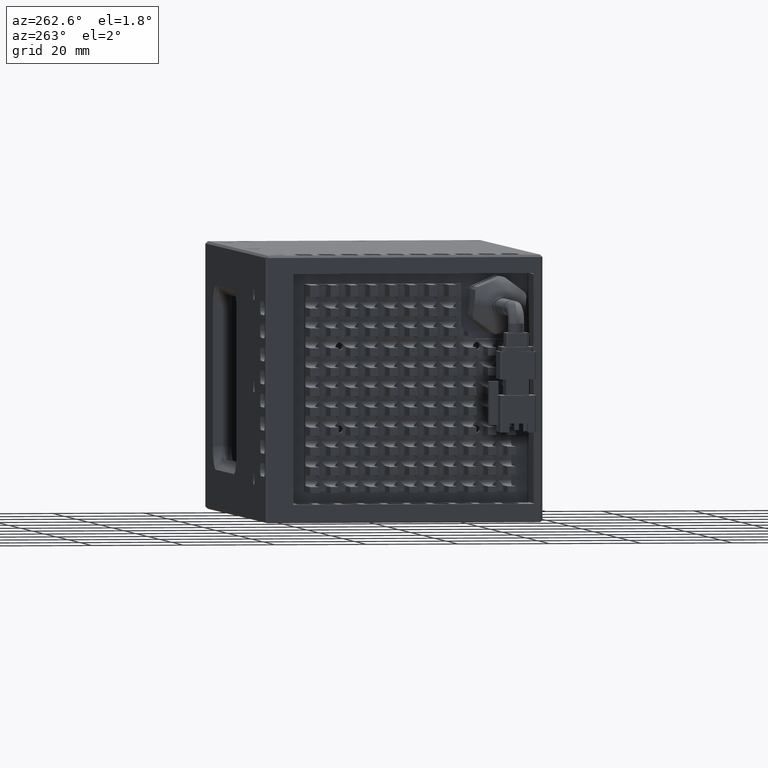
[diagram: clean part render]
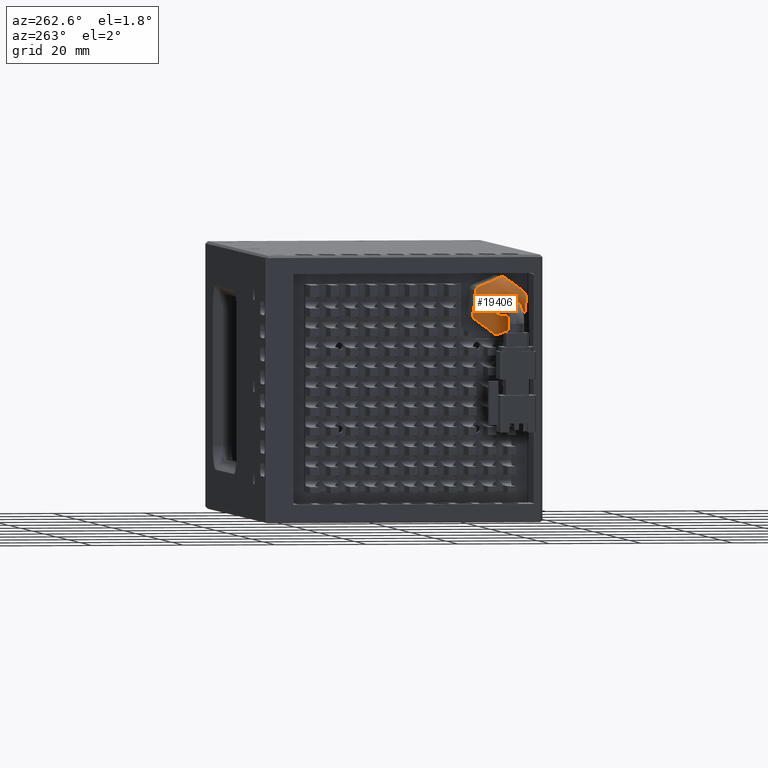
[diagram: same view with one face highlighted and labeled with its STEP entity id]
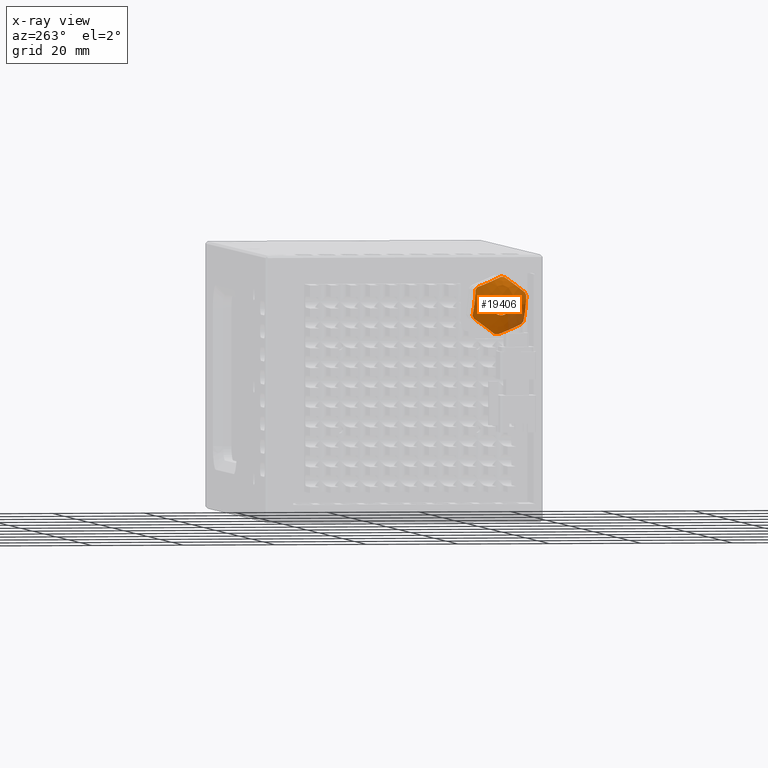
[diagram: x-ray of the same camera — body ghosted, the highlighted face saturated]
A machine part, auxiliary view. The second image highlights one B-rep face of the part: STEP entity #19406.
The next image is the same camera in x-ray: the body ghosted, the highlighted face saturated — about 18% of this face is hidden behind the body in this view.
In plain terms, the highlighted face is a freeform B-spline surface patch.
Its self-contained STEP definition (entity closure, byte-faithful):
#63 = CARTESIAN_POINT ( 'NONE',  ( -68.86375292816285300, -3.792667049684699700, 49.83769652459977800 ) ) ;
#166 = DIRECTION ( 'NONE',  ( 0.0000000000000000000, -0.1155358669953258200, 0.9933033088828601100 ) ) ;
#1013 = CARTESIAN_POINT ( 'NONE',  ( -69.38120834824214000, -3.117553787398188000, 50.33971150953847500 ) ) ;
#1240 = CARTESIAN_POINT ( 'NONE',  ( -68.86375292816285300, 0.6615168280449691400, 53.14983269078837200 ) ) ;
#1282 = CARTESIAN_POINT ( 'NONE',  ( -67.11748828113964300, -2.040397117867909200, 52.89484992564335600 ) ) ;
#1352 = AXIS2_PLACEMENT_3D ( 'NONE', #9060, #46141, #14370 ) ;
#1388 = CIRCLE ( 'NONE', #61117, 6.249999999999519500 ) ;
#1791 = EDGE_CURVE ( 'NONE', #23437, #22887, #40915, .T. ) ;
#2209 = ORIENTED_EDGE ( 'NONE', *, *, #60921, .F. ) ;
#2486 = DIRECTION ( 'NONE',  ( 1.000000000000000000, 3.435095995686201000E-016, -5.943609381515295800E-025 ) ) ;
#2876 = CARTESIAN_POINT ( 'NONE',  ( -69.36540694991369100, 7.560464355518643500, 45.73862366140457400 ) ) ;
#3120 = EDGE_LOOP ( 'NONE', ( #13408, #25479, #13553, #9849, #22340, #30602, #57524, #2209, #23750, #50856, #17514, #3140, #38096 ) ) ;
#3140 = ORIENTED_EDGE ( 'NONE', *, *, #8042, .F. ) ;
#3761 = CARTESIAN_POINT ( 'NONE',  ( -68.86375292816285300, 1.775993330902647400, 47.00000000000953500 ) ) ;
#4474 = CARTESIAN_POINT ( 'NONE',  ( -69.36540694991344900, -4.008477693713319700, 48.26137633861409200 ) ) ;
#4615 = CARTESIAN_POINT ( 'NONE',  ( -69.15758857129343100, 1.819326933526871400, 53.08153772507832700 ) ) ;
#5013 = VERTEX_POINT ( 'NONE', #24273 ) ;
#5042 = CARTESIAN_POINT ( 'NONE',  ( -69.76791800731977800, -0.6688521879133749700, 41.95597120429006600 ) ) ;
#5071 = CARTESIAN_POINT ( 'NONE',  ( -69.74827311948452300, 4.449950362044707400, 51.94504730067372800 ) ) ;
#5281 = CARTESIAN_POINT ( 'NONE',  ( -69.76791800731975000, 4.921827646007848500, 42.36068727452639800 ) ) ;
#6366 = CARTESIAN_POINT ( 'NONE',  ( -69.67060427605079600, -2.354425536202253700, 50.90717453971647200 ) ) ;
#6644 = CARTESIAN_POINT ( 'NONE',  ( -76.08316824912783700, 4.992152780540819500, 50.51262484915948600 ) ) ;
#7600 = CARTESIAN_POINT ( 'NONE',  ( -68.86375292816285300, 1.775993330902647400, 47.00000000000953500 ) ) ;
#7998 = CARTESIAN_POINT ( 'NONE',  ( -68.86375292816285300, 1.775993330902647400, 47.00000000000953500 ) ) ;
#8042 = EDGE_CURVE ( 'NONE', #45745, #43527, #1388, .T. ) ;
#8171 = AXIS2_PLACEMENT_3D ( 'NONE', #63686, #31951, #166 ) ;
#8188 = AXIS2_PLACEMENT_3D ( 'NONE', #34255, #2486, #39546 ) ;
#8218 = CARTESIAN_POINT ( 'NONE',  ( -69.01067074972847600, 7.635850173332784200, 45.09050473327419400 ) ) ;
#8396 = AXIS2_PLACEMENT_3D ( 'NONE', #7600, #44694, #12902 ) ;
#9060 = CARTESIAN_POINT ( 'NONE',  ( -68.86375292816285300, 1.775993330902647400, 47.00000000000953500 ) ) ;
#9117 = DIRECTION ( 'NONE',  ( 0.0000000000000000000, 0.1155358669953259300, -0.9933033088828600000 ) ) ;
#9807 = CARTESIAN_POINT ( 'NONE',  ( -69.01067074972826300, -4.083863511527429300, 48.90949526674420900 ) ) ;
#9849 = ORIENTED_EDGE ( 'NONE', *, *, #48258, .F. ) ;
#10173 = CARTESIAN_POINT ( 'NONE',  ( -69.38120834824199800, 2.221494780315773600, 52.90779187383861200 ) ) ;
#10369 = CARTESIAN_POINT ( 'NONE',  ( -69.67125075074393700, -1.344631551777275300, 42.24792358626742600 ) ) ;
#10404 = CARTESIAN_POINT ( 'NONE',  ( -69.61395248318250100, 5.116209980309052200, 51.65720766991690000 ) ) ;
#10559 = VERTEX_POINT ( 'NONE', #44816 ) ;
#10620 = CARTESIAN_POINT ( 'NONE',  ( -69.67125075074403600, 4.331099784588070100, 41.92142136905575700 ) ) ;
#10706 = EDGE_LOOP ( 'NONE', ( #65352, #31477 ) ) ;
#11080 = CARTESIAN_POINT ( 'NONE',  ( -68.86375292816285300, 2.498092499623379800, 40.79185431949214500 ) ) ;
#11395 = EDGE_CURVE ( 'NONE', #10559, #5013, #32630, .T. ) ;
#11665 = CARTESIAN_POINT ( 'NONE',  ( -69.76751117526085000, -1.767517929904791800, 51.34359969915998100 ) ) ;
#11723 = AXIS2_PLACEMENT_3D ( 'NONE', #22608, #59703, #27889 ) ;
#11933 = CARTESIAN_POINT ( 'NONE',  ( -70.08185129819501900, -6.113500693981673200, 49.22087308385862800 ) ) ;
#12902 = DIRECTION ( 'NONE',  ( 0.0000000000000000000, 0.1155358669953259300, -0.9933033088828600000 ) ) ;
#13318 = CARTESIAN_POINT ( 'NONE',  ( -69.61245713189376300, 7.196944862330591200, 48.86393119418734400 ) ) ;
#13329 = DIRECTION ( 'NONE',  ( 0.0000000000000000000, 0.1155358669953259300, -0.9933033088828600000 ) ) ;
#13408 = ORIENTED_EDGE ( 'NONE', *, *, #67504, .F. ) ;
#13553 = ORIENTED_EDGE ( 'NONE', *, *, #42558, .F. ) ;
#14370 = DIRECTION ( 'NONE',  ( 0.0000000000000000000, 0.1155358669953259300, -0.9933033088828600000 ) ) ;
#14902 = CARTESIAN_POINT ( 'NONE',  ( -69.61245713189386200, -3.644958200525246100, 45.13606880583137800 ) ) ;
#15705 = CARTESIAN_POINT ( 'NONE',  ( -69.46139549951442400, -1.995845591150274600, 42.52926317746930400 ) ) ;
#15736 = CARTESIAN_POINT ( 'NONE',  ( -69.36540694991353500, 5.760612796175310600, 51.37881068547886800 ) ) ;
#15953 = CARTESIAN_POINT ( 'NONE',  ( -69.46139549951458000, 3.761845531830432200, 41.49812326325859900 ) ) ;
#16519 = CARTESIAN_POINT ( 'NONE',  ( -68.86375292816285300, 2.102806242668322900, 40.75855038307755500 ) ) ;
#16802 = CARTESIAN_POINT ( 'NONE',  ( -68.86375292816285300, -3.792667049684699700, 49.83769652459977800 ) ) ;
#17040 = CARTESIAN_POINT ( 'NONE',  ( -69.74827311948448000, -1.169564738817325400, 51.78823836793858200 ) ) ;
#17312 = CARTESIAN_POINT ( 'NONE',  ( -76.08316824912810700, 5.712523559291454100, 44.31933875745265500 ) ) ;
#17514 = ORIENTED_EDGE ( 'NONE', *, *, #24078, .T. ) ;
#18152 = CARTESIAN_POINT ( 'NONE',  ( -68.86375292816285300, 7.659142921570422800, 44.89024861801639300 ) ) ;
#18557 = B_SPLINE_CURVE_WITH_KNOTS ( 'NONE', 3,
 ( #20779, #57860, #26060, #63209, #31456, #68479, #36777, #5042, #42142, #10369, #47402, #15705, #52728, #20998, #58095, #26291 ),
 .UNSPECIFIED., .F., .F.,
 ( 4, 2, 2, 2, 2, 2, 2, 4 ),
 ( 4.690887623826672200E-016, 0.001475511169496401600, 0.002213266754244368100, 0.002951022338992334400, 0.003688777923740300700, 0.004426533508488267000, 0.005164289093236232800, 0.005902044677984199600 ),
 .UNSPECIFIED. ) ;
#18626 = CARTESIAN_POINT ( 'NONE',  ( -69.74788720313210900, 7.281067362270874800, 48.14069987463955900 ) ) ;
#18782 = B_SPLINE_CURVE_WITH_KNOTS ( 'NONE', 3,
 ( #52744, #52523, #26307, #63440, #31691, #68727, #37024, #5281, #42401, #10620, #47662, #15953, #52979, #21232, #58341, #26534 ),
 .UNSPECIFIED., .F., .F.,
 ( 4, 2, 2, 2, 2, 2, 2, 4 ),
 ( 3.506984956607857700E-016, 0.001475511169496294900, 0.002213266754244266200, 0.002951022338992237300, 0.003688777923740208700, 0.004426533508488178500, 0.005164289093236150400, 0.005902044677984120600 ),
 .UNSPECIFIED. ) ;
#19406 = ADVANCED_FACE ( 'NONE', ( #66655, #26019 ), #42108, .T. ) ;
#20210 = CARTESIAN_POINT ( 'NONE',  ( -69.74788720313216600, -3.729080700465533300, 45.85930012537919300 ) ) ;
#20779 = CARTESIAN_POINT ( 'NONE',  ( -68.86375292816285300, 2.102806242668322900, 40.75855038307755500 ) ) ;
#20998 = CARTESIAN_POINT ( 'NONE',  ( -69.14023917023453700, -2.613706873808888000, 42.79619360306332300 ) ) ;
#21030 = CARTESIAN_POINT ( 'NONE',  ( -69.01067074972824900, 6.359593161516713200, 51.12003725472583000 ) ) ;
#21147 = EDGE_CURVE ( 'NONE', #47506, #5013, #18557, .T. ) ;
#21232 = CARTESIAN_POINT ( 'NONE',  ( -69.14023917023473600, 3.221746360893675800, 41.09650490925837100 ) ) ;
#21725 = DIRECTION ( 'NONE',  ( 1.000000000000000000, 3.435095995686201000E-016, -5.943609381515295800E-025 ) ) ;
#22329 = CARTESIAN_POINT ( 'NONE',  ( -69.61395248318247300, -0.5871584972338312900, 52.22131630749275600 ) ) ;
#22340 = ORIENTED_EDGE ( 'NONE', *, *, #21147, .T. ) ;
#22594 = CARTESIAN_POINT ( 'NONE',  ( -70.08185129819513300, -5.393129915231303300, 43.02758699215177500 ) ) ;
#22608 = CARTESIAN_POINT ( 'NONE',  ( -68.86375292816285300, 1.775993330902647400, 47.00000000000953500 ) ) ;
#22887 = VERTEX_POINT ( 'NONE', #60649 ) ;
#23437 = VERTEX_POINT ( 'NONE', #56130 ) ;
#23750 = ORIENTED_EDGE ( 'NONE', *, *, #51095, .T. ) ;
#23936 = CARTESIAN_POINT ( 'NONE',  ( -69.76791800731984900, 7.366673164823561500, 47.40471607024569100 ) ) ;
#24078 = EDGE_CURVE ( 'NONE', #50008, #43527, #66457, .T. ) ;
#24131 = VERTEX_POINT ( 'NONE', #11080 ) ;
#24273 = CARTESIAN_POINT ( 'NONE',  ( -68.86375292816285300, -2.992679756905907600, 42.95991869122291700 ) ) ;
#24797 = CARTESIAN_POINT ( 'NONE',  ( -68.86375292816285300, 1.775993330902647400, 47.00000000000953500 ) ) ;
#25371 = CARTESIAN_POINT ( 'NONE',  ( -68.86375292816285300, -4.107156259765115900, 49.10975138200239300 ) ) ;
#25479 = ORIENTED_EDGE ( 'NONE', *, *, #54796, .T. ) ;
#25488 = CARTESIAN_POINT ( 'NONE',  ( -69.76791800731982100, -3.814686503018229800, 46.59528392977304600 ) ) ;
#25873 = CIRCLE ( 'NONE', #8188, 6.249999999999516800 ) ;
#26019 = FACE_OUTER_BOUND ( 'NONE', #3120, .T. ) ;
#26060 = CARTESIAN_POINT ( 'NONE',  ( -69.38120834824229600, 1.330491881488283800, 41.09220812617983400 ) ) ;
#26096 = CARTESIAN_POINT ( 'NONE',  ( -69.61245713189376300, 2.872257331551832500, 52.62664733599891800 ) ) ;
#26291 = CARTESIAN_POINT ( 'NONE',  ( -68.86375292816285300, -2.992679756905907600, 42.95991869122291700 ) ) ;
#26307 = CARTESIAN_POINT ( 'NONE',  ( -69.38120834824218300, 6.669540449203119600, 43.66028849047898300 ) ) ;
#26534 = CARTESIAN_POINT ( 'NONE',  ( -68.86375292816285300, 2.890469833762177000, 40.85016730923076300 ) ) ;
#27606 = CARTESIAN_POINT ( 'NONE',  ( -69.36540694991340700, -0.02385822844040110000, 52.64018702408416300 ) ) ;
#27790 = EDGE_CURVE ( 'NONE', #22887, #23437, #54350, .T. ) ;
#27882 = CARTESIAN_POINT ( 'NONE',  ( -69.57956255432741000, 3.970657990856444600, 40.91651937782536000 ) ) ;
#27889 = DIRECTION ( 'NONE',  ( 0.0000000000000000000, 0.1155358669953259300, -0.9933033088828600000 ) ) ;
#28710 = EDGE_CURVE ( 'NONE', #10559, #50489, #40329, .T. ) ;
#29047 = CARTESIAN_POINT ( 'NONE',  ( -69.38120834824201200, 7.115041898616981400, 49.56808036430897600 ) ) ;
#29269 = CARTESIAN_POINT ( 'NONE',  ( -69.67125075074412200, 7.451724667267646000, 46.67349778279739100 ) ) ;
#29957 = CARTESIAN_POINT ( 'NONE',  ( -68.86375292816285300, 7.344653711489161000, 44.16230347541733900 ) ) ;
#30152 = DIRECTION ( 'NONE',  ( 0.0000000000000000000, 0.1155358669953666000, -0.9933033088828552300 ) ) ;
#30602 = ORIENTED_EDGE ( 'NONE', *, *, #11395, .F. ) ;
#30873 = CARTESIAN_POINT ( 'NONE',  ( -69.67125075074402200, -3.899738005462314700, 47.32650221722131100 ) ) ;
#31456 = CARTESIAN_POINT ( 'NONE',  ( -69.67060427605066800, 0.4574903560481536900, 41.46936506297194600 ) ) ;
#31477 = ORIENTED_EDGE ( 'NONE', *, *, #1791, .T. ) ;
#31481 = CARTESIAN_POINT ( 'NONE',  ( -69.74788720313222300, 3.540655277063015300, 52.33788389820305300 ) ) ;
#31691 = CARTESIAN_POINT ( 'NONE',  ( -69.67060427605058200, 5.906412198007584100, 43.09282546030131300 ) ) ;
#31951 = DIRECTION ( 'NONE',  ( 1.000000000000000000, 3.435095995686201000E-016, -5.943609381515295800E-025 ) ) ;
#32630 = CIRCLE ( 'NONE', #52940, 6.249999999999515100 ) ;
#33024 = CARTESIAN_POINT ( 'NONE',  ( -69.01067074972813500, 0.4997363190867983900, 53.02953252146132700 ) ) ;
#33062 = CARTESIAN_POINT ( 'NONE',  ( -69.57956255432689800, -0.4186713290508614100, 53.08348062219300800 ) ) ;
#33291 = CARTESIAN_POINT ( 'NONE',  ( -67.11748828113989900, -0.5854992543141562800, 40.38657089906728700 ) ) ;
#34255 = CARTESIAN_POINT ( 'NONE',  ( -68.86375292816285300, 1.775993330902647400, 47.00000000000953500 ) ) ;
#34355 = B_SPLINE_CURVE_WITH_KNOTS ( 'NONE', 3,
 ( #16802, #48510, #1013, #38121, #6366, #43461, #11665, #48736, #17040, #54023, #22329, #59402, #27606, #64720, #33024, #1240 ),
 .UNSPECIFIED., .F., .F.,
 ( 4, 2, 2, 2, 2, 2, 2, 4 ),
 ( 1.319765775190741900E-016, 0.001475511169496877800, 0.002213266754245249300, 0.002951022338993621600, 0.003688777923741994200, 0.004426533508490366900, 0.005164289093238740400, 0.005902044677987113000 ),
 .UNSPECIFIED. ) ;
#34642 = CARTESIAN_POINT ( 'NONE',  ( -69.46139549951456600, 7.533684453883029900, 45.96886008579814800 ) ) ;
#36059 = EDGE_CURVE ( 'NONE', #45745, #49743, #46154, .T. ) ;
#36213 = CARTESIAN_POINT ( 'NONE',  ( -69.46139549951433900, -3.981697792077699500, 48.03113991422054600 ) ) ;
#36777 = CARTESIAN_POINT ( 'NONE',  ( -69.76751117526065100, -0.2139187220289190400, 41.75942937997803700 ) ) ;
#36813 = CARTESIAN_POINT ( 'NONE',  ( -69.76791800732003400, 4.220838849718489000, 52.04402879572795400 ) ) ;
#36932 = VERTEX_POINT ( 'NONE', #64142 ) ;
#37024 = CARTESIAN_POINT ( 'NONE',  ( -69.76751117526056600, 5.319504591710440900, 42.65640030085803100 ) ) ;
#38096 = ORIENTED_EDGE ( 'NONE', *, *, #36059, .T. ) ;
#38121 = CARTESIAN_POINT ( 'NONE',  ( -69.61245713189387600, -2.548694199875747300, 50.76271614182066800 ) ) ;
#38383 = CARTESIAN_POINT ( 'NONE',  ( -70.08185129819497700, 8.945116577036481300, 50.97241300786692600 ) ) ;
#39126 = CARTESIAN_POINT ( 'NONE',  ( -68.86375292816285300, 2.890469833762177000, 40.85016730923076300 ) ) ;
#39546 = DIRECTION ( 'NONE',  ( 0.0000000000000000000, 0.1155358669952932900, -0.9933033088828637800 ) ) ;
#39929 = CARTESIAN_POINT ( 'NONE',  ( -69.14023917023460800, 7.611446565604945000, 45.30031130620378800 ) ) ;
#40329 = B_SPLINE_CURVE_WITH_KNOTS ( 'NONE', 3,
 ( #62393, #41327, #46654, #14902, #51957, #20210, #57287, #25488, #62627, #30873, #67918, #36213, #4474, #41548, #9807, #46867 ),
 .UNSPECIFIED., .F., .F.,
 ( 4, 2, 2, 2, 2, 2, 2, 4 ),
 ( 3.681255805517746600E-016, 0.001475511169496699300, 0.002213266754244868100, 0.002951022338993037000, 0.003688777923741205800, 0.004426533508489373700, 0.005164289093237543400, 0.005902044677985712200 ),
 .UNSPECIFIED. ) ;
#40772 = VERTEX_POINT ( 'NONE', #39126 ) ;
#40836 = DIRECTION ( 'NONE',  ( 1.000000000000000000, 3.435095995686201000E-016, -5.943609381515295800E-025 ) ) ;
#40915 = CIRCLE ( 'NONE', #8171, 2.000000000000002200 ) ;
#41327 = CARTESIAN_POINT ( 'NONE',  ( -69.15758857129377200, -3.512439634392970200, 43.99675913818516200 ) ) ;
#41548 = CARTESIAN_POINT ( 'NONE',  ( -69.14023917023423800, -4.059459903799619500, 48.69968869381483500 ) ) ;
#42108 =( BOUNDED_SURFACE ( )  B_SPLINE_SURFACE ( 3, 3, ( 
 ( #64289, #64761, #33062, #1282 ),
 ( #38383, #6644, #43730, #11933 ),
 ( #49023, #17312, #54305, #22594 ),
 ( #59689, #27882, #64983, #33291 ) ),
 .UNSPECIFIED., .F., .F., .F. ) 
 B_SPLINE_SURFACE_WITH_KNOTS ( ( 4, 4 ),
 ( 4, 4 ),
 ( 0.0000000000000000000, 1.000000000000000000 ),
 ( 0.0000000000000000000, 1.000000000000000000 ),
 .UNSPECIFIED. ) 
 GEOMETRIC_REPRESENTATION_ITEM ( )  RATIONAL_B_SPLINE_SURFACE ( (
 ( 1.000000000000000000, 0.7017694484579010100, 0.7017694484579010100, 1.000000000000000000),
 ( 0.6732171387617810200, 0.4724432201612612800, 0.4724432201612612800, 0.6732171387617810200),
 ( 0.6732171387617810200, 0.4724432201612612800, 0.4724432201612612800, 0.6732171387617810200),
 ( 1.000000000000000000, 0.7017694484579010100, 0.7017694484579010100, 1.000000000000000000) ) ) 
 REPRESENTATION_ITEM ( '' )  SURFACE ( )  );
#42142 = CARTESIAN_POINT ( 'NONE',  ( -69.74827311948423900, -0.8979637002394858000, 42.05495269934421300 ) ) ;
#42176 = CARTESIAN_POINT ( 'NONE',  ( -69.67125075074416400, 4.896618213582739200, 51.75207641375039500 ) ) ;
#42401 = CARTESIAN_POINT ( 'NONE',  ( -69.74827311948429600, 4.721551400623289900, 42.21176163207969300 ) ) ;
#42558 = EDGE_CURVE ( 'NONE', #24131, #40772, #55745, .T. ) ;
#43461 = CARTESIAN_POINT ( 'NONE',  ( -69.74788720313225100, -1.964418754304794800, 51.19718402357275300 ) ) ;
#43527 = VERTEX_POINT ( 'NONE', #44414 ) ;
#43730 = CARTESIAN_POINT ( 'NONE',  ( -76.08316824912785100, -2.160536897485977100, 49.68066124256606700 ) ) ;
#44414 = CARTESIAN_POINT ( 'NONE',  ( -68.86375292816285300, 6.544666418712424200, 51.04008130879449800 ) ) ;
#44694 = DIRECTION ( 'NONE',  ( -1.000000000000000000, -3.435095995686201000E-016, 5.943609381515295800E-025 ) ) ;
#44816 = CARTESIAN_POINT ( 'NONE',  ( -68.86375292816285300, -3.465854137917597600, 43.59624690766882100 ) ) ;
#45091 = CARTESIAN_POINT ( 'NONE',  ( -68.86375292816285300, 7.017840799722939900, 50.40375309235000900 ) ) ;
#45098 = DIRECTION ( 'NONE',  ( 1.000000000000000000, 3.435095995686201000E-016, -5.943609381515295800E-025 ) ) ;
#45312 = CARTESIAN_POINT ( 'NONE',  ( -68.86375292816285300, 7.659142921570422800, 44.89024861801639300 ) ) ;
#45745 = VERTEX_POINT ( 'NONE', #62568 ) ;
#46141 = DIRECTION ( 'NONE',  ( 1.000000000000000000, 3.435095995686201000E-016, -5.943609381515295800E-025 ) ) ;
#46154 = B_SPLINE_CURVE_WITH_KNOTS ( 'NONE', 3,
 ( #45091, #66091, #29047, #13318, #50355, #18626, #55683, #23936, #61044, #29269, #66324, #34642, #2876, #39929, #8218, #45312 ),
 .UNSPECIFIED., .F., .F.,
 ( 4, 2, 2, 2, 2, 2, 2, 4 ),
 ( 1.497122641742852700E-016, 0.001475511169496494800, 0.002213266754244667300, 0.002951022338992840100, 0.003688777923741012800, 0.004426533508489185500, 0.005164289093237358700, 0.005902044677985531000 ),
 .UNSPECIFIED. ) ;
#46654 = CARTESIAN_POINT ( 'NONE',  ( -69.38120834824232500, -3.563055236811629700, 44.43191963570969700 ) ) ;
#46867 = CARTESIAN_POINT ( 'NONE',  ( -68.86375292816285300, -4.107156259765115900, 49.10975138200239300 ) ) ;
#47402 = CARTESIAN_POINT ( 'NONE',  ( -69.61395248318233100, -1.564223318503453500, 42.34279233010092000 ) ) ;
#47439 = CARTESIAN_POINT ( 'NONE',  ( -69.46139549951450900, 5.547832252956119700, 51.47073682254839600 ) ) ;
#47506 = VERTEX_POINT ( 'NONE', #16519 ) ;
#47662 = CARTESIAN_POINT ( 'NONE',  ( -69.61395248318244500, 4.139145159040094900, 41.77868369252573200 ) ) ;
#48258 = EDGE_CURVE ( 'NONE', #47506, #24131, #25873, .T. ) ;
#48510 = CARTESIAN_POINT ( 'NONE',  ( -69.15758857129357300, -3.469106031768471400, 50.07829686325383300 ) ) ;
#48736 = CARTESIAN_POINT ( 'NONE',  ( -69.76791800731994900, -1.369840984201970800, 51.63931272549179100 ) ) ;
#49023 = CARTESIAN_POINT ( 'NONE',  ( -70.08185129819510500, 9.665487355787213600, 44.77912691616013100 ) ) ;
#49743 = VERTEX_POINT ( 'NONE', #18152 ) ;
#50008 = VERTEX_POINT ( 'NONE', #63055 ) ;
#50355 = CARTESIAN_POINT ( 'NONE',  ( -69.67060427605062500, 7.224915172861658500, 48.62346039733898100 ) ) ;
#50489 = VERTEX_POINT ( 'NONE', #25371 ) ;
#50856 = ORIENTED_EDGE ( 'NONE', *, *, #55024, .T. ) ;
#51095 = EDGE_CURVE ( 'NONE', #66682, #36932, #34355, .T. ) ;
#51333 = VERTEX_POINT ( 'NONE', #29957 ) ;
#51957 = CARTESIAN_POINT ( 'NONE',  ( -69.67060427605076700, -3.672928511056312100, 45.37653960267974900 ) ) ;
#52523 = CARTESIAN_POINT ( 'NONE',  ( -69.15758857129368700, 7.021092693573398200, 43.92170313676363900 ) ) ;
#52728 = CARTESIAN_POINT ( 'NONE',  ( -69.36540694991359100, -2.208626134369361600, 42.62118931453878200 ) ) ;
#52744 = CARTESIAN_POINT ( 'NONE',  ( -68.86375292816285300, 7.344653711489161000, 44.16230347541733900 ) ) ;
#52760 = CARTESIAN_POINT ( 'NONE',  ( -69.14023917023431000, 6.165693535615012900, 51.20380639695424200 ) ) ;
#52927 = CIRCLE ( 'NONE', #8396, 6.249999999999519500 ) ;
#52940 = AXIS2_PLACEMENT_3D ( 'NONE', #24797, #61901, #30152 ) ;
#52979 = CARTESIAN_POINT ( 'NONE',  ( -69.36540694991373400, 3.575844890246930000, 41.35981297593453100 ) ) ;
#53450 = CARTESIAN_POINT ( 'NONE',  ( -72.09568362246530200, 1.775993330902716700, 47.00000000000893200 ) ) ;
#54023 = CARTESIAN_POINT ( 'NONE',  ( -69.67125075074409300, -0.7791131227819094700, 52.07857863096266000 ) ) ;
#54305 = CARTESIAN_POINT ( 'NONE',  ( -76.08316824912812100, -1.440166118735522800, 43.48737515085923600 ) ) ;
#54350 = CIRCLE ( 'NONE', #64626, 2.000000000000002200 ) ;
#54796 = EDGE_CURVE ( 'NONE', #51333, #40772, #18782, .T. ) ;
#55024 = EDGE_CURVE ( 'NONE', #36932, #50008, #52927, .T. ) ;
#55683 = CARTESIAN_POINT ( 'NONE',  ( -69.76751117526068000, 7.309416644641678400, 47.89697092088950100 ) ) ;
#55745 = CIRCLE ( 'NONE', #1352, 6.249999999999519500 ) ;
#56130 = CARTESIAN_POINT ( 'NONE',  ( -72.09568362246530200, 2.007065064893367900, 45.01339338224320800 ) ) ;
#57287 = CARTESIAN_POINT ( 'NONE',  ( -69.76751117526072200, -3.757429982836344900, 46.10302907912925000 ) ) ;
#57524 = ORIENTED_EDGE ( 'NONE', *, *, #28710, .T. ) ;
#57860 = CARTESIAN_POINT ( 'NONE',  ( -69.15758857129378600, 1.732659728277374100, 40.91846227494003300 ) ) ;
#57898 = CARTESIAN_POINT ( 'NONE',  ( -68.86375292816285300, 1.449180419135050600, 53.24144961694118200 ) ) ;
#58095 = CARTESIAN_POINT ( 'NONE',  ( -69.01067074972844800, -2.807606499710740600, 42.87996274529179200 ) ) ;
#58131 = CARTESIAN_POINT ( 'NONE',  ( -68.86375292816285300, 6.544666418712424200, 51.04008130879449800 ) ) ;
#58341 = CARTESIAN_POINT ( 'NONE',  ( -69.01067074972857500, 3.052250342719560600, 40.97046747855725400 ) ) ;
#58841 = DIRECTION ( 'NONE',  ( 0.0000000000000000000, -0.1155358669953258200, 0.9933033088828601100 ) ) ;
#59402 = CARTESIAN_POINT ( 'NONE',  ( -69.46139549951436700, -0.2098588700239784100, 52.50187673676001800 ) ) ;
#59689 = CARTESIAN_POINT ( 'NONE',  ( -67.11748828113987000, 5.592383779673666000, 41.10515007437504000 ) ) ;
#59703 = DIRECTION ( 'NONE',  ( 1.000000000000000000, 3.435095995686201000E-016, -5.943609381515295800E-025 ) ) ;
#60649 = CARTESIAN_POINT ( 'NONE',  ( -72.09568362246530200, 1.544921596912064900, 48.98660661777465500 ) ) ;
#60921 = EDGE_CURVE ( 'NONE', #66682, #50489, #63498, .T. ) ;
#61044 = CARTESIAN_POINT ( 'NONE',  ( -69.74827311948443800, 7.395508431765049900, 47.15680893274469600 ) ) ;
#61117 = AXIS2_PLACEMENT_3D ( 'NONE', #7998, #45098, #13329 ) ;
#61901 = DIRECTION ( 'NONE',  ( 1.000000000000000000, 3.435095995686201000E-016, -5.943609381515295800E-025 ) ) ;
#62393 = CARTESIAN_POINT ( 'NONE',  ( -68.86375292816285300, -3.465854137917597600, 43.59624690766882100 ) ) ;
#62568 = CARTESIAN_POINT ( 'NONE',  ( -68.86375292816285300, 7.017840799722939900, 50.40375309235000900 ) ) ;
#62627 = CARTESIAN_POINT ( 'NONE',  ( -69.74827311948432400, -3.843521769959718600, 46.84319106727402700 ) ) ;
#63055 = CARTESIAN_POINT ( 'NONE',  ( -68.86375292816285300, 1.449180419135050600, 53.24144961694118200 ) ) ;
#63209 = CARTESIAN_POINT ( 'NONE',  ( -69.61245713189381900, 0.6797293302525440100, 41.37335266401940700 ) ) ;
#63238 = CARTESIAN_POINT ( 'NONE',  ( -69.67060427605069600, 3.094496305756325900, 52.53063493704631500 ) ) ;
#63440 = CARTESIAN_POINT ( 'NONE',  ( -69.61245713189369200, 6.100680861680974200, 43.23728385819703100 ) ) ;
#63498 = CIRCLE ( 'NONE', #11723, 6.249999999999519500 ) ;
#63686 = CARTESIAN_POINT ( 'NONE',  ( -72.09568362246530200, 1.775993330902716700, 47.00000000000893200 ) ) ;
#64142 = CARTESIAN_POINT ( 'NONE',  ( -68.86375292816285300, 0.6615168280449691400, 53.14983269078837200 ) ) ;
#64289 = CARTESIAN_POINT ( 'NONE',  ( -67.11748828113961500, 4.137485916119175900, 53.61342910095101600 ) ) ;
#64626 = AXIS2_PLACEMENT_3D ( 'NONE', #53450, #21725, #58841 ) ;
#64720 = CARTESIAN_POINT ( 'NONE',  ( -69.14023917023413900, 0.3302403009129766800, 52.90349509076042300 ) ) ;
#64761 = CARTESIAN_POINT ( 'NONE',  ( -69.57956255432687000, 2.515760127302150400, 53.42479840440135800 ) ) ;
#64983 = CARTESIAN_POINT ( 'NONE',  ( -69.57956255432743800, 1.036226534503087900, 40.57520159561696000 ) ) ;
#65219 = AXIS2_PLACEMENT_3D ( 'NONE', #3761, #40836, #9117 ) ;
#65352 = ORIENTED_EDGE ( 'NONE', *, *, #27790, .T. ) ;
#66091 = CARTESIAN_POINT ( 'NONE',  ( -69.15758857129347300, 7.064426296198351300, 50.00324086183330500 ) ) ;
#66324 = CARTESIAN_POINT ( 'NONE',  ( -69.61395248318253000, 7.479361808445839100, 46.43589136243380700 ) ) ;
#66457 = B_SPLINE_CURVE_WITH_KNOTS ( 'NONE', 3,
 ( #57898, #4615, #10173, #26096, #63238, #31481, #68508, #36813, #5071, #42176, #10404, #47439, #15736, #52760, #21030, #58131 ),
 .UNSPECIFIED., .F., .F.,
 ( 4, 2, 2, 2, 2, 2, 2, 4 ),
 ( 2.596296363159514900E-017, 0.001475511169496785000, 0.002213266754245160400, 0.002951022338993536100, 0.003688777923741910100, 0.004426533508490284500, 0.005164289093238658800, 0.005902044677987033200 ),
 .UNSPECIFIED. ) ;
#66655 = FACE_BOUND ( 'NONE', #10706, .T. ) ;
#66682 = VERTEX_POINT ( 'NONE', #63 ) ;
#67131 = CIRCLE ( 'NONE', #65219, 6.249999999999519500 ) ;
#67504 = EDGE_CURVE ( 'NONE', #51333, #49743, #67131, .T. ) ;
#67918 = CARTESIAN_POINT ( 'NONE',  ( -69.61395248318233100, -3.927375146640508200, 47.56410863758488000 ) ) ;
#68479 = CARTESIAN_POINT ( 'NONE',  ( -69.74788720313206600, 0.01133138474170054300, 41.66211610181510800 ) ) ;
#68508 = CARTESIAN_POINT ( 'NONE',  ( -69.76751117526085000, 3.765905383833764800, 52.24057062004008900 ) ) ;
#68727 = CARTESIAN_POINT ( 'NONE',  ( -69.74788720313205200, 5.516405416110333500, 42.80281597644518900 ) ) ;